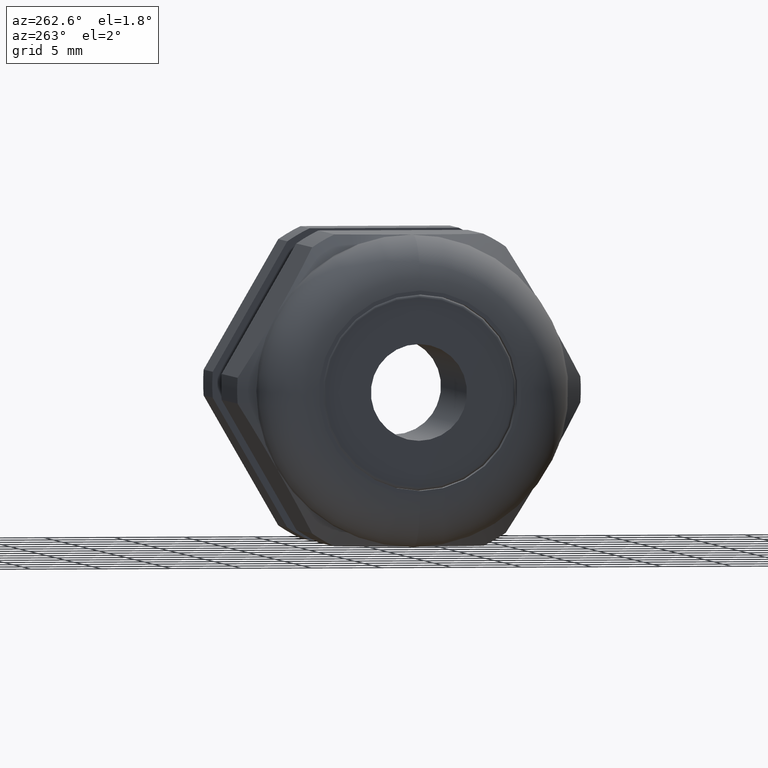
[diagram: clean part render]
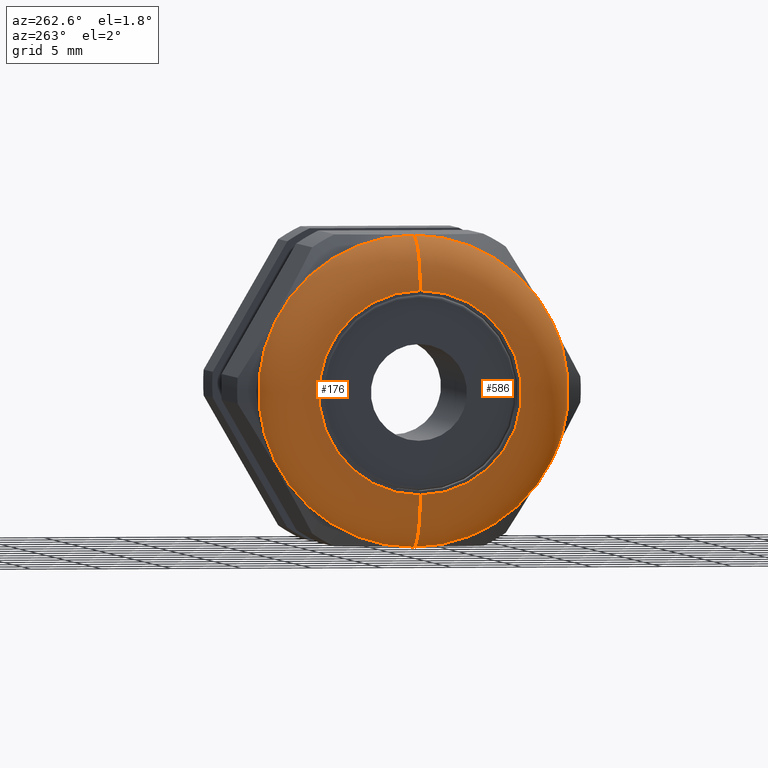
[diagram: same view with one multi-face feature highlighted, each face labeled with its STEP entity id]
A machine part, auxiliary view. The highlighted faces form ONE feature: a constant-radius fillet chain: 2 tangent blend faces with common blend radius 3.81 mm. The faces share edges in the B-rep.
Their STEP definitions:
[1] entity #586 (Torus):
#206 = VERTEX_POINT ( 'NONE', #1676 ) ;
#207 = VERTEX_POINT ( 'NONE', #1675 ) ;
#209 = EDGE_CURVE ( 'NONE', #206, #210, #1674, .T. ) ;
#210 = VERTEX_POINT ( 'NONE', #1669 ) ;
#213 = VERTEX_POINT ( 'NONE', #1663 ) ;
#480 = EDGE_CURVE ( 'NONE', #210, #213, #2210, .T. ) ;
#493 = EDGE_CURVE ( 'NONE', #207, #206, #2246, .T. ) ;
#586 = ADVANCED_FACE ( 'NONE', ( #2391 ), #2387, .T. ) ;
#587 = EDGE_LOOP ( 'NONE', ( #588, #589, #590, #591 ) ) ;
#588 = ORIENTED_EDGE ( 'NONE', *, *, #209, .F. ) ;
#589 = ORIENTED_EDGE ( 'NONE', *, *, #493, .F. ) ;
#590 = ORIENTED_EDGE ( 'NONE', *, *, #4018, .T. ) ;
#591 = ORIENTED_EDGE ( 'NONE', *, *, #480, .F. ) ;
#1663 = CARTESIAN_POINT ( 'NONE',  ( -1.289999999999999800, 0.0000000000000000000, 0.2850000000000000300 ) ) ;
#1669 = CARTESIAN_POINT ( 'NONE',  ( -1.289999999999999800, 4.408728476930471600E-017, -0.2850000000000000300 ) ) ;
#1670 = DIRECTION ( 'NONE',  ( 0.0000000000000000000, -1.224646799147353000E-016, 1.000000000000000000 ) ) ;
#1671 = DIRECTION ( 'NONE',  ( 0.0000000000000000000, 1.000000000000000000, 1.224646799147353200E-016 ) ) ;
#1672 = CARTESIAN_POINT ( 'NONE',  ( -1.139999999999999900, 3.490243377569956900E-017, -0.2850000000000000300 ) ) ;
#1673 = AXIS2_PLACEMENT_3D ( 'NONE', #1672, #1671, #1670 ) ;
#1674 = CIRCLE ( 'NONE', #1673, 0.1499999999999999900 ) ;
#1675 = CARTESIAN_POINT ( 'NONE',  ( -1.139999999999999900, 5.327213576290986400E-017, 0.4350000000000000000 ) ) ;
#1676 = CARTESIAN_POINT ( 'NONE',  ( -1.139999999999999900, 0.0000000000000000000, -0.4350000000000000000 ) ) ;
#2202 = DIRECTION ( 'NONE',  ( 0.0000000000000000000, 0.0000000000000000000, 1.000000000000000000 ) ) ;
#2203 = DIRECTION ( 'NONE',  ( -1.000000000000000000, 0.0000000000000000000, 0.0000000000000000000 ) ) ;
#2204 = CARTESIAN_POINT ( 'NONE',  ( -1.289999999999999800, 0.0000000000000000000, 0.0000000000000000000 ) ) ;
#2205 = AXIS2_PLACEMENT_3D ( 'NONE', #2204, #2203, #2202 ) ;
#2210 = CIRCLE ( 'NONE', #2205, 0.2850000000000000300 ) ;
#2243 = DIRECTION ( 'NONE',  ( 0.0000000000000000000, 0.0000000000000000000, 1.000000000000000000 ) ) ;
#2244 = DIRECTION ( 'NONE',  ( 1.000000000000000000, 0.0000000000000000000, 0.0000000000000000000 ) ) ;
#2245 = AXIS2_PLACEMENT_3D ( 'NONE', #2250, #2244, #2243 ) ;
#2246 = CIRCLE ( 'NONE', #2245, 0.4350000000000000000 ) ;
#2250 = CARTESIAN_POINT ( 'NONE',  ( -1.139999999999999900, 0.0000000000000000000, 0.0000000000000000000 ) ) ;
#2382 = DIRECTION ( 'NONE',  ( 0.0000000000000000000, 0.0000000000000000000, 1.000000000000000000 ) ) ;
#2383 = DIRECTION ( 'NONE',  ( -1.000000000000000000, 0.0000000000000000000, 0.0000000000000000000 ) ) ;
#2384 = CARTESIAN_POINT ( 'NONE',  ( -1.139999999999999900, 0.0000000000000000000, 0.0000000000000000000 ) ) ;
#2385 = AXIS2_PLACEMENT_3D ( 'NONE', #2384, #2383, #2382 ) ;
#2387 = TOROIDAL_SURFACE ( 'NONE', #2385, 0.2850000000000000300, 0.1499999999999999900 ) ;
#2391 = FACE_OUTER_BOUND ( 'NONE', #587, .T. ) ;
#3700 = DIRECTION ( 'NONE',  ( 0.0000000000000000000, 0.0000000000000000000, -1.000000000000000000 ) ) ;
#3701 = DIRECTION ( 'NONE',  ( 0.0000000000000000000, -1.000000000000000000, 0.0000000000000000000 ) ) ;
#3702 = CARTESIAN_POINT ( 'NONE',  ( -1.139999999999999900, 0.0000000000000000000, 0.2850000000000000300 ) ) ;
#3703 = AXIS2_PLACEMENT_3D ( 'NONE', #3702, #3701, #3700 ) ;
#3708 = CIRCLE ( 'NONE', #3703, 0.1499999999999999900 ) ;
#4018 = EDGE_CURVE ( 'NONE', #207, #213, #3708, .T. ) ;
[2] entity #176 (Torus):
#176 = ADVANCED_FACE ( 'NONE', ( #1618 ), #1611, .T. ) ;
#203 = EDGE_LOOP ( 'NONE', ( #204, #208, #211, #2162 ) ) ;
#204 = ORIENTED_EDGE ( 'NONE', *, *, #205, .F. ) ;
#205 = EDGE_CURVE ( 'NONE', #206, #207, #1681, .T. ) ;
#206 = VERTEX_POINT ( 'NONE', #1676 ) ;
#207 = VERTEX_POINT ( 'NONE', #1675 ) ;
#208 = ORIENTED_EDGE ( 'NONE', *, *, #209, .T. ) ;
#209 = EDGE_CURVE ( 'NONE', #206, #210, #1674, .T. ) ;
#210 = VERTEX_POINT ( 'NONE', #1669 ) ;
#211 = ORIENTED_EDGE ( 'NONE', *, *, #212, .F. ) ;
#212 = EDGE_CURVE ( 'NONE', #213, #210, #1668, .T. ) ;
#213 = VERTEX_POINT ( 'NONE', #1663 ) ;
#1608 = DIRECTION ( 'NONE',  ( 0.0000000000000000000, 0.0000000000000000000, 1.000000000000000000 ) ) ;
#1609 = DIRECTION ( 'NONE',  ( -1.000000000000000000, 0.0000000000000000000, 0.0000000000000000000 ) ) ;
#1610 = AXIS2_PLACEMENT_3D ( 'NONE', #1612, #1609, #1608 ) ;
#1611 = TOROIDAL_SURFACE ( 'NONE', #1610, 0.2850000000000000300, 0.1499999999999999900 ) ;
#1612 = CARTESIAN_POINT ( 'NONE',  ( -1.139999999999999900, 0.0000000000000000000, 0.0000000000000000000 ) ) ;
#1618 = FACE_OUTER_BOUND ( 'NONE', #203, .T. ) ;
#1663 = CARTESIAN_POINT ( 'NONE',  ( -1.289999999999999800, 0.0000000000000000000, 0.2850000000000000300 ) ) ;
#1664 = DIRECTION ( 'NONE',  ( 0.0000000000000000000, 0.0000000000000000000, 1.000000000000000000 ) ) ;
#1665 = DIRECTION ( 'NONE',  ( -1.000000000000000000, 0.0000000000000000000, 0.0000000000000000000 ) ) ;
#1666 = CARTESIAN_POINT ( 'NONE',  ( -1.289999999999999800, 0.0000000000000000000, 0.0000000000000000000 ) ) ;
#1667 = AXIS2_PLACEMENT_3D ( 'NONE', #1666, #1665, #1664 ) ;
#1668 = CIRCLE ( 'NONE', #1667, 0.2850000000000000300 ) ;
#1669 = CARTESIAN_POINT ( 'NONE',  ( -1.289999999999999800, 4.408728476930471600E-017, -0.2850000000000000300 ) ) ;
#1670 = DIRECTION ( 'NONE',  ( 0.0000000000000000000, -1.224646799147353000E-016, 1.000000000000000000 ) ) ;
#1671 = DIRECTION ( 'NONE',  ( 0.0000000000000000000, 1.000000000000000000, 1.224646799147353200E-016 ) ) ;
#1672 = CARTESIAN_POINT ( 'NONE',  ( -1.139999999999999900, 3.490243377569956900E-017, -0.2850000000000000300 ) ) ;
#1673 = AXIS2_PLACEMENT_3D ( 'NONE', #1672, #1671, #1670 ) ;
#1674 = CIRCLE ( 'NONE', #1673, 0.1499999999999999900 ) ;
#1675 = CARTESIAN_POINT ( 'NONE',  ( -1.139999999999999900, 5.327213576290986400E-017, 0.4350000000000000000 ) ) ;
#1676 = CARTESIAN_POINT ( 'NONE',  ( -1.139999999999999900, 0.0000000000000000000, -0.4350000000000000000 ) ) ;
#1677 = DIRECTION ( 'NONE',  ( 0.0000000000000000000, 0.0000000000000000000, 1.000000000000000000 ) ) ;
#1678 = DIRECTION ( 'NONE',  ( 1.000000000000000000, 0.0000000000000000000, 0.0000000000000000000 ) ) ;
#1679 = CARTESIAN_POINT ( 'NONE',  ( -1.139999999999999900, 0.0000000000000000000, 0.0000000000000000000 ) ) ;
#1680 = AXIS2_PLACEMENT_3D ( 'NONE', #1679, #1678, #1677 ) ;
#1681 = CIRCLE ( 'NONE', #1680, 0.4350000000000000000 ) ;
#2162 = ORIENTED_EDGE ( 'NONE', *, *, #4018, .F. ) ;
#3700 = DIRECTION ( 'NONE',  ( 0.0000000000000000000, 0.0000000000000000000, -1.000000000000000000 ) ) ;
#3701 = DIRECTION ( 'NONE',  ( 0.0000000000000000000, -1.000000000000000000, 0.0000000000000000000 ) ) ;
#3702 = CARTESIAN_POINT ( 'NONE',  ( -1.139999999999999900, 0.0000000000000000000, 0.2850000000000000300 ) ) ;
#3703 = AXIS2_PLACEMENT_3D ( 'NONE', #3702, #3701, #3700 ) ;
#3708 = CIRCLE ( 'NONE', #3703, 0.1499999999999999900 ) ;
#4018 = EDGE_CURVE ( 'NONE', #207, #213, #3708, .T. ) ;